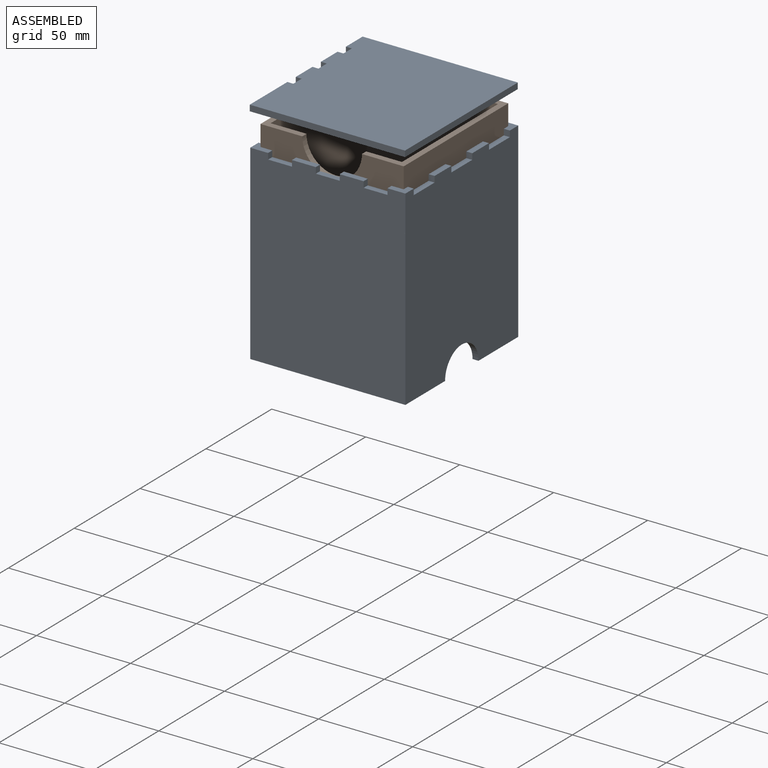
[diagram: assembled view]
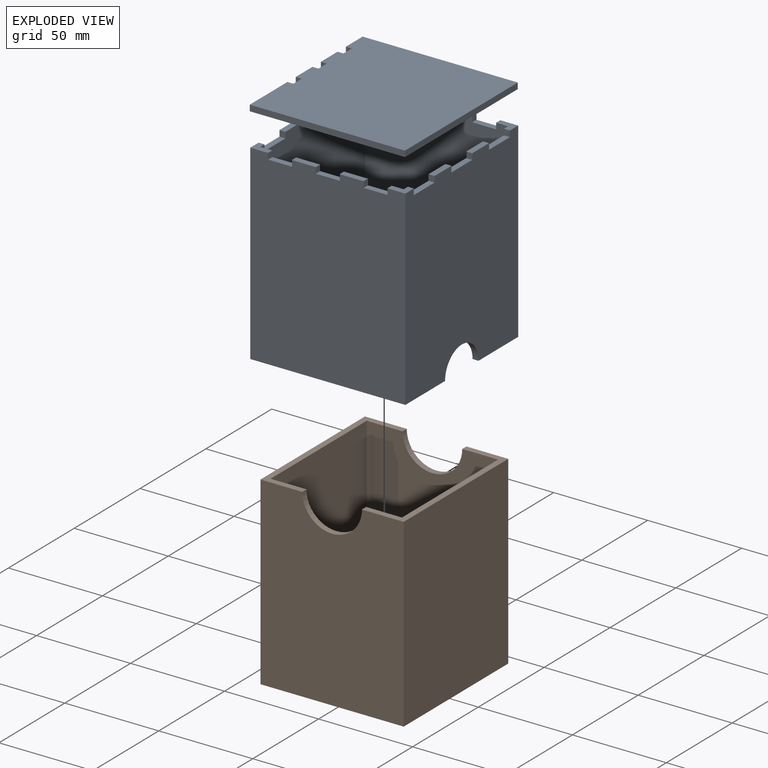
[diagram: exploded view]
GUIDED TOUR — MATED ASSEMBLY WITH SUBASSEMBLIES (Onshape document 00e461404087c15854c8ce74, AutoMate assembly 00e461404087c15854c8ce74_b9351771f8d7acd07a54468d_1669efc70e379d00489d12cd_default)

This assembly has 10 component occurrences arranged in 2 top-level units: 0 individual components plus 2 subassemblies (S0, S1). The tour has two levels: first the top level, where each subassembly is treated as one rigid unit; then each subassembly is toured internally in its own section (nesting deeper than one subassembly level is flattened into its subassembly's section).

Components are labeled P0..P9 across the whole record; subassembly units are labeled S0..S1. A mate is a constraint between two units; its type names the relative motion it leaves free:
  FASTENED — locks the two components together rigidly (no relative motion),
  SLIDER — leaves translation along the listed axis free.
Axis/direction vectors are unit vectors and 'through' points are millimeter coordinates, both in the assembly's world frame.

TOP-LEVEL MATES (between units; each subassembly's internal mates are listed in its own section)
  1. SLIDER "Slider 1": S0 <-> S1, axis (0.000, 0.000, 1.000) through (0.00, 0.00, 104.78) mm

TOP-LEVEL ASSEMBLY ORDER
  1. S0 — the base component [order verified]
  2. S1 [order verified]
Order-tag legend:
  [order verified] — this step's position reverses a verified removal order: the component was checked to insert without passing through the ones already placed.

Of the 10 component occurrences, 9 carry the full construction recipe — the FeatureScript program that regenerates the part's solid from scratch; the rest are supplied as boundary geometry only. Each toured unit is shown spotlighted twice — assembled, then exploded with a leader line back to its socket (green = recipe-attached component, orange = geometry-only, blue = subassembly unit; the rest desaturated gray).
NOTE — document 2 of 2 of this assembly tour. The two overview renders and the header above are repeated from document 1; the component sections below continue where the previous document stopped.
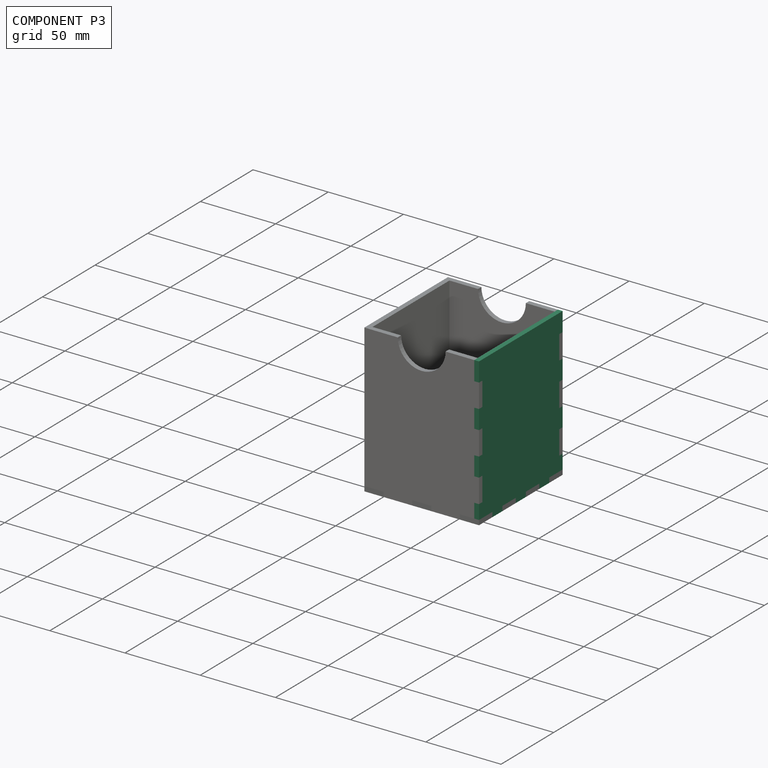
[diagram: component P3 — assembled]
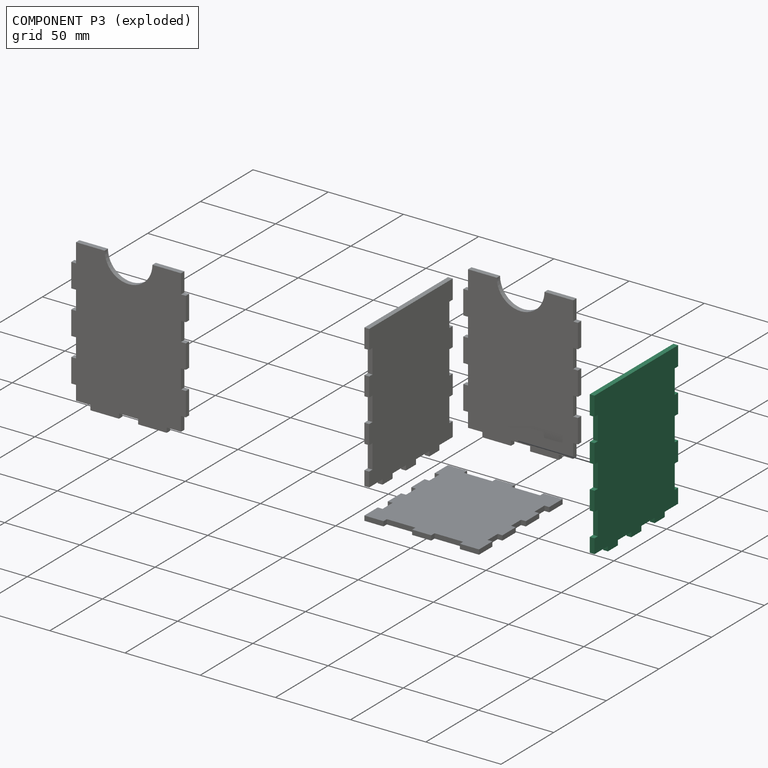
[diagram: component P3 — exploded]
COMPONENT P3 — recipe-attached (CADFS 00515018, mesh-verified: the recipe's output STEP matches this component's geometry to below the mesh-comparison resolution (tessellation chordal tolerance ~0.19 mm)).
Held by: FASTENED mate "Fastened 2" to P8; FASTENED mate "Fastened 3" to P2; FASTENED mate "Fastened 2" to P8; FASTENED mate "Fastened 3" to P2.
Construction recipe (FeatureScript — the CAD program that rebuilds this solid; sketch coordinates are in the units given by the * unit suffixes, e.g. mm):

FeatureScript 1511;
import(path : "onshape/std/geometry.fs", version : "1511.0");
import(path : "onshape/std/common.fs", version : "1511.0");
const mm = millimeter;
const VERTEX = EntityType.VERTEX;
const EDGE = EntityType.EDGE;
const FACE = EntityType.FACE;
const BODY = EntityType.BODY;
function v(x, y){return vector(x, y);}
function OD(order){return orderDisambiguation(order);}
function OSD(set){return originalSetDisambiguation(set);}
function TD(topology){return topologyDisambiguation(topology);}
function TDD(query){return trueDependencyDisambiguation(query);}
function sQuery(a, b, c) {return sketchEntityQuery(a, b, c);}

annotation { "Feature Type Name" : "Feature", "Feature Type Description" : "" }
export const myFeature = defineFeature(function(context is Context, id is Id, definition is map)
    precondition{}
    {
        {
            var Q0;
            Q0=qCreatedBy(makeId("Right.planeOp"),FACE);
            var sketch = newSketch(context, id + "F0", { "sketchPlane" : qUnion([Q0])});
            skLineSegment(sketch, "E0.bottom", {"start": v(-39.69, 49.21) * mm, "end": v(39.69, 49.21) * mm});
            skLineSegment(sketch, "E0.top", {"start": v(-39.69, -49.21) * mm, "end": v(39.69, -49.21) * mm});
            skLineSegment(sketch, "E0.left", {"start": v(-39.69, 49.21) * mm, "end": v(-39.69, -49.21) * mm});
            skLineSegment(sketch, "E0.right", {"start": v(39.69, 49.21) * mm, "end": v(39.69, -49.21) * mm});
            skSolve(sketch);
        }
        {
            var Q0;
            Q0 = qSketchRegion(id + "F0", true);
            extrude(context, id + "F1", {"entities" : qUnion([Q0]), "depth" : 3.17 * mm, "offsetDistance" : 25.4 * mm});
        }
        {
            var Q0;
            Q0=makeQuery(id+"F1.opExtrude","CAP_FACE",FACE,{"disambiguationData":[OSD([sQuery(id+"F0.wireOp",EDGE,"E0.bottom"),sQuery(id+"F0.wireOp",EDGE,"E0.top"),sQuery(id+"F0.wireOp",EDGE,"E0.left"),sQuery(id+"F0.wireOp",EDGE,"E0.right")])],"isStart":false});
            var sketch = newSketch(context, id + "F2", { "sketchPlane" : qUnion([Q0])});
            skLineSegment(sketch, "E1", {"start": v(0, 49.21) * mm, "end": v(0, -49.21) * mm, "construction": true});
            skLineSegment(sketch, "E2.bottom", {"start": v(-39.69, 36.51) * mm, "end": v(-36.51, 36.51) * mm});
            skLineSegment(sketch, "E2.top", {"start": v(-39.69, 20.64) * mm, "end": v(-36.51, 20.64) * mm});
            skLineSegment(sketch, "E2.left", {"start": v(-39.69, 36.51) * mm, "end": v(-39.69, 20.64) * mm});
            skLineSegment(sketch, "E2.right", {"start": v(-36.51, 36.51) * mm, "end": v(-36.51, 20.64) * mm});
            skLineSegment(sketch, "E3.0.1.0", {"start": v(-39.69, -7.94) * mm, "end": v(-36.51, -7.94) * mm});
            skLineSegment(sketch, "E3.0.1.1", {"start": v(-39.69, 7.94) * mm, "end": v(-39.69, -7.94) * mm});
            skLineSegment(sketch, "E3.0.1.2", {"start": v(-39.69, 7.94) * mm, "end": v(-36.51, 7.94) * mm});
            skLineSegment(sketch, "E3.0.1.3", {"start": v(-36.51, 7.94) * mm, "end": v(-36.51, -7.94) * mm});
            skLineSegment(sketch, "E3.0.2.0", {"start": v(-39.69, -36.51) * mm, "end": v(-36.51, -36.51) * mm});
            skLineSegment(sketch, "E3.0.2.1", {"start": v(-39.69, -20.64) * mm, "end": v(-39.69, -36.51) * mm});
            skLineSegment(sketch, "E3.0.2.2", {"start": v(-39.69, -20.64) * mm, "end": v(-36.51, -20.64) * mm});
            skLineSegment(sketch, "E3.0.2.3", {"start": v(-36.51, -20.64) * mm, "end": v(-36.51, -36.51) * mm});
            skLineSegment(sketch, "E3.direction1", {"start": v(-39.69, 20.64) * mm, "end": v(-14.29, 20.64) * mm, "construction": true});
            skLineSegment(sketch, "E3.direction2", {"start": v(-39.69, 20.64) * mm, "end": v(-39.69, -7.94) * mm, "construction": true});
            skLineSegment(sketch, "E4.MirrorCS", {"start": v(39.69, 20.64) * mm, "end": v(36.51, 20.64) * mm});
            skLineSegment(sketch, "E5.MirrorCS", {"start": v(39.69, -36.51) * mm, "end": v(36.51, -36.51) * mm});
            skLineSegment(sketch, "E6.MirrorCS", {"start": v(39.69, -20.64) * mm, "end": v(36.51, -20.64) * mm});
            skLineSegment(sketch, "E7.MirrorCS", {"start": v(39.69, -7.94) * mm, "end": v(36.51, -7.94) * mm});
            skLineSegment(sketch, "E8.MirrorCS", {"start": v(39.69, 36.51) * mm, "end": v(36.51, 36.51) * mm});
            skLineSegment(sketch, "E9.MirrorCS", {"start": v(39.69, 7.94) * mm, "end": v(36.51, 7.94) * mm});
            skLineSegment(sketch, "E10.MirrorCS", {"start": v(39.69, 7.94) * mm, "end": v(39.69, -7.94) * mm});
            skLineSegment(sketch, "E11.MirrorCS", {"start": v(39.69, 36.51) * mm, "end": v(39.69, 20.64) * mm});
            skLineSegment(sketch, "E12.MirrorCS", {"start": v(36.51, -20.64) * mm, "end": v(36.51, -36.51) * mm});
            skLineSegment(sketch, "E13.MirrorCS", {"start": v(39.69, 20.64) * mm, "end": v(39.69, -7.94) * mm, "construction": true});
            skLineSegment(sketch, "E14.MirrorCS", {"start": v(39.69, 20.64) * mm, "end": v(14.29, 20.64) * mm, "construction": true});
            skLineSegment(sketch, "E15.MirrorCS", {"start": v(36.51, 36.51) * mm, "end": v(36.51, 20.64) * mm});
            skLineSegment(sketch, "E16.MirrorCS", {"start": v(39.69, -20.64) * mm, "end": v(39.69, -36.51) * mm});
            skLineSegment(sketch, "E17.MirrorCS", {"start": v(36.51, 7.94) * mm, "end": v(36.51, -7.94) * mm});
            skSolve(sketch);
        }
        {
            var Q0;
            Q0 = qSketchRegion(id + "F2", true);
            extrude(context, id + "F3", {"entities" : qUnion([Q0]), "operationType" : NewBodyOperationType.REMOVE, "endBound" : BoundingType.THROUGH_ALL, "oppositeDirection" : true, "depth" : 25.4 * mm, "offsetDistance" : 25.4 * mm});
        }
        {
            var Q0;
            Q0=makeQuery(id+"F1.opExtrude","CAP_FACE",FACE,{"disambiguationData":[OSD([sQuery(id+"F0.wireOp",EDGE,"E0.bottom"),sQuery(id+"F0.wireOp",EDGE,"E0.top"),sQuery(id+"F0.wireOp",EDGE,"E0.left"),sQuery(id+"F0.wireOp",EDGE,"E0.right")])],"isStart":false});
            var sketch = newSketch(context, id + "F4", { "sketchPlane" : qUnion([Q0])});
            skLineSegment(sketch, "E18.bottom", {"start": v(-39.69, 49.21) * mm, "end": v(-26.99, 49.21) * mm});
            skLineSegment(sketch, "E18.top", {"start": v(-39.69, 46.04) * mm, "end": v(-26.99, 46.04) * mm});
            skLineSegment(sketch, "E18.left", {"start": v(-39.69, 49.21) * mm, "end": v(-39.69, 46.04) * mm});
            skLineSegment(sketch, "E18.right", {"start": v(-26.99, 49.21) * mm, "end": v(-26.99, 46.04) * mm});
            skLineSegment(sketch, "E19.1.0.0", {"start": v(-4.76, 49.21) * mm, "end": v(-4.76, 46.04) * mm});
            skLineSegment(sketch, "E19.1.0.1", {"start": v(-17.46, 49.21) * mm, "end": v(-17.46, 46.04) * mm});
            skLineSegment(sketch, "E19.1.0.2", {"start": v(-17.46, 46.04) * mm, "end": v(-4.76, 46.04) * mm});
            skLineSegment(sketch, "E19.1.0.3", {"start": v(-17.46, 49.21) * mm, "end": v(-4.76, 49.21) * mm});
            skLineSegment(sketch, "E19.2.0.0", {"start": v(17.46, 49.21) * mm, "end": v(17.46, 46.04) * mm});
            skLineSegment(sketch, "E19.2.0.1", {"start": v(4.76, 49.21) * mm, "end": v(4.76, 46.04) * mm});
            skLineSegment(sketch, "E19.2.0.2", {"start": v(4.76, 46.04) * mm, "end": v(17.46, 46.04) * mm});
            skLineSegment(sketch, "E19.2.0.3", {"start": v(4.76, 49.21) * mm, "end": v(17.46, 49.21) * mm});
            skLineSegment(sketch, "E19.3.0.0", {"start": v(39.69, 49.21) * mm, "end": v(39.69, 46.04) * mm});
            skLineSegment(sketch, "E19.3.0.1", {"start": v(26.99, 49.21) * mm, "end": v(26.99, 46.04) * mm});
            skLineSegment(sketch, "E19.3.0.2", {"start": v(26.99, 46.04) * mm, "end": v(39.69, 46.04) * mm});
            skLineSegment(sketch, "E19.3.0.3", {"start": v(26.99, 49.21) * mm, "end": v(39.69, 49.21) * mm});
            skLineSegment(sketch, "E19.direction1", {"start": v(-39.69, 46.04) * mm, "end": v(-17.46, 46.04) * mm, "construction": true});
            skSolve(sketch);
        }
        {
            var Q0;
            Q0 = qSketchRegion(id + "F4", true);
            extrude(context, id + "F5", {"entities" : qUnion([Q0]), "operationType" : NewBodyOperationType.REMOVE, "endBound" : BoundingType.THROUGH_ALL, "oppositeDirection" : true, "depth" : 25.4 * mm, "offsetDistance" : 25.4 * mm});
        }
    });
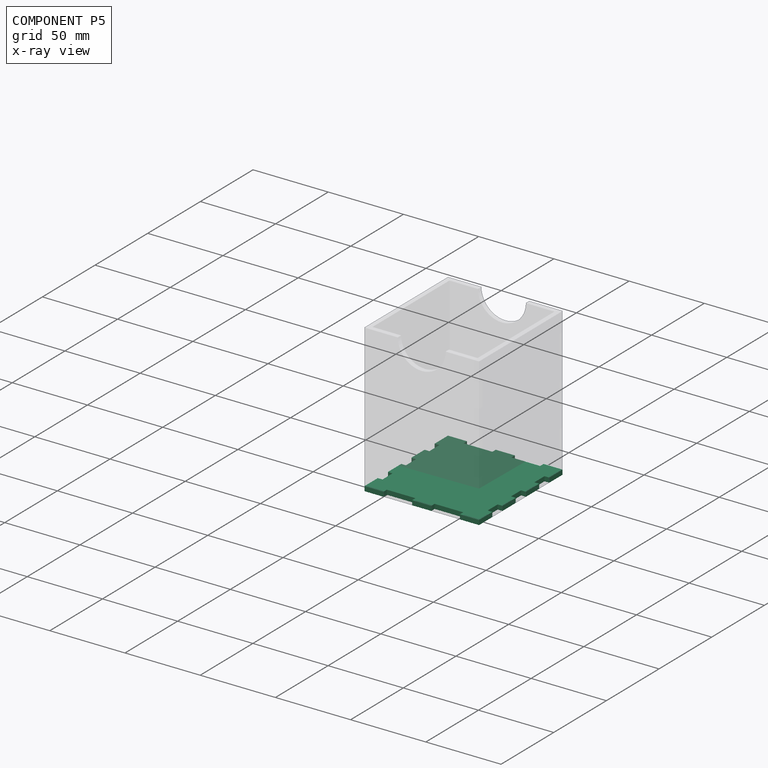
[diagram: component P5 — x-ray view]
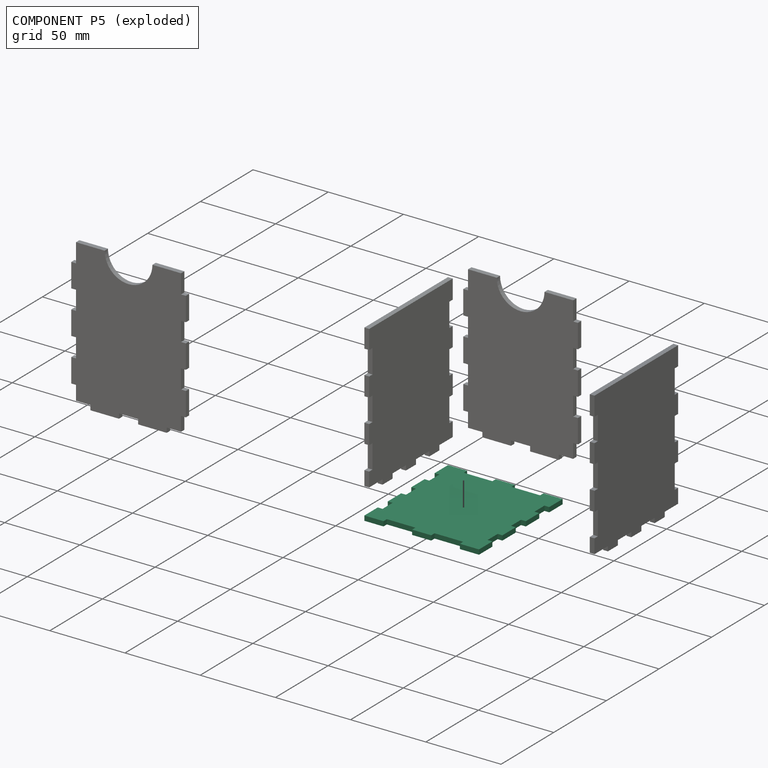
[diagram: component P5 — exploded]
COMPONENT P5 — recipe-attached (CADFS 00515020, mesh-verified: the recipe's output STEP matches this component's geometry to below the mesh-comparison resolution (tessellation chordal tolerance ~0.165 mm)).
Held by: FASTENED mate "Fastened 4" to P8; FASTENED mate "Fastened 4" to P8.
Construction recipe (FeatureScript — the CAD program that rebuilds this solid; sketch coordinates are in the units given by the * unit suffixes, e.g. mm):

FeatureScript 1511;
import(path : "onshape/std/geometry.fs", version : "1511.0");
import(path : "onshape/std/common.fs", version : "1511.0");
const mm = millimeter;
const VERTEX = EntityType.VERTEX;
const EDGE = EntityType.EDGE;
const FACE = EntityType.FACE;
const BODY = EntityType.BODY;
function v(x, y){return vector(x, y);}
function OD(order){return orderDisambiguation(order);}
function OSD(set){return originalSetDisambiguation(set);}
function TD(topology){return topologyDisambiguation(topology);}
function TDD(query){return trueDependencyDisambiguation(query);}
function sQuery(a, b, c) {return sketchEntityQuery(a, b, c);}

annotation { "Feature Type Name" : "Feature", "Feature Type Description" : "" }
export const myFeature = defineFeature(function(context is Context, id is Id, definition is map)
    precondition{}
    {
        {
            var Q0;
            Q0=qCreatedBy(makeId("Top.planeOp"),FACE);
            var sketch = newSketch(context, id + "F0", { "sketchPlane" : qUnion([Q0])});
            skLineSegment(sketch, "E0.bottom", {"start": v(-38.1, 39.69) * mm, "end": v(38.1, 39.69) * mm});
            skLineSegment(sketch, "E0.top", {"start": v(-38.1, -39.69) * mm, "end": v(38.1, -39.69) * mm});
            skLineSegment(sketch, "E0.left", {"start": v(-38.1, 39.69) * mm, "end": v(-38.1, -39.69) * mm});
            skLineSegment(sketch, "E0.right", {"start": v(38.1, 39.69) * mm, "end": v(38.1, -39.69) * mm});
            skSolve(sketch);
        }
        {
            var Q0;
            Q0 = qSketchRegion(id + "F0", true);
            extrude(context, id + "F1", {"entities" : qUnion([Q0]), "depth" : 3.17 * mm, "offsetDistance" : 25.4 * mm});
        }
        {
            var Q0;
            Q0=makeQuery(id+"F1.opExtrude","CAP_FACE",FACE,{"disambiguationData":[OSD([sQuery(id+"F0.wireOp",EDGE,"E0.bottom"),sQuery(id+"F0.wireOp",EDGE,"E0.top"),sQuery(id+"F0.wireOp",EDGE,"E0.left"),sQuery(id+"F0.wireOp",EDGE,"E0.right")])],"isStart":false});
            var sketch = newSketch(context, id + "F2", { "sketchPlane" : qUnion([Q0])});
            skLineSegment(sketch, "E1", {"start": v(-38.1, 0) * mm, "end": v(38.1, 0) * mm, "construction": true});
            skLineSegment(sketch, "E2.bottom", {"start": v(-25.4, 39.69) * mm, "end": v(-6.35, 39.69) * mm});
            skLineSegment(sketch, "E2.top", {"start": v(-25.4, 36.51) * mm, "end": v(-6.35, 36.51) * mm});
            skLineSegment(sketch, "E2.left", {"start": v(-25.4, 39.69) * mm, "end": v(-25.4, 36.51) * mm});
            skLineSegment(sketch, "E2.right", {"start": v(-6.35, 39.69) * mm, "end": v(-6.35, 36.51) * mm});
            skLineSegment(sketch, "E3.1.0.0", {"start": v(6.35, 36.51) * mm, "end": v(25.4, 36.51) * mm});
            skLineSegment(sketch, "E3.1.0.1", {"start": v(6.35, 39.69) * mm, "end": v(25.4, 39.69) * mm});
            skLineSegment(sketch, "E3.1.0.2", {"start": v(25.4, 39.69) * mm, "end": v(25.4, 36.51) * mm});
            skLineSegment(sketch, "E3.1.0.3", {"start": v(6.35, 39.69) * mm, "end": v(6.35, 36.51) * mm});
            skLineSegment(sketch, "E3.direction1", {"start": v(-25.4, 36.51) * mm, "end": v(6.35, 36.51) * mm, "construction": true});
            skLineSegment(sketch, "E4.MirrorCS", {"start": v(25.4, -39.69) * mm, "end": v(25.4, -36.51) * mm});
            skLineSegment(sketch, "E5.MirrorCS", {"start": v(6.35, -39.69) * mm, "end": v(6.35, -36.51) * mm});
            skLineSegment(sketch, "E6.MirrorCS", {"start": v(-25.4, -39.69) * mm, "end": v(-25.4, -36.51) * mm});
            skLineSegment(sketch, "E7.MirrorCS", {"start": v(-6.35, -39.69) * mm, "end": v(-6.35, -36.51) * mm});
            skLineSegment(sketch, "E8.MirrorCS", {"start": v(-25.4, -36.51) * mm, "end": v(-6.35, -36.51) * mm});
            skLineSegment(sketch, "E9.MirrorCS", {"start": v(-25.4, -39.69) * mm, "end": v(-6.35, -39.69) * mm});
            skLineSegment(sketch, "E10.MirrorCS", {"start": v(6.35, -39.69) * mm, "end": v(25.4, -39.69) * mm});
            skLineSegment(sketch, "E11.MirrorCS", {"start": v(-25.4, -36.51) * mm, "end": v(6.35, -36.51) * mm, "construction": true});
            skLineSegment(sketch, "E12.MirrorCS", {"start": v(6.35, -36.51) * mm, "end": v(25.4, -36.51) * mm});
            skSolve(sketch);
        }
        {
            var Q0;
            Q0 = qSketchRegion(id + "F2", true);
            extrude(context, id + "F3", {"entities" : qUnion([Q0]), "operationType" : NewBodyOperationType.REMOVE, "endBound" : BoundingType.THROUGH_ALL, "oppositeDirection" : true, "depth" : 25.4 * mm, "offsetDistance" : 25.4 * mm});
        }
        {
            var Q0;
            Q0=makeQuery(id+"F1.opExtrude","CAP_FACE",FACE,{"disambiguationData":[OSD([sQuery(id+"F0.wireOp",EDGE,"E0.bottom"),sQuery(id+"F0.wireOp",EDGE,"E0.top"),sQuery(id+"F0.wireOp",EDGE,"E0.left"),sQuery(id+"F0.wireOp",EDGE,"E0.right")])],"isStart":false});
            var sketch = newSketch(context, id + "F4", { "sketchPlane" : qUnion([Q0])});
            skLineSegment(sketch, "E13.bottom", {"start": v(-38.1, 26.99) * mm, "end": v(-34.93, 26.99) * mm});
            skLineSegment(sketch, "E13.top", {"start": v(-38.1, 17.46) * mm, "end": v(-34.93, 17.46) * mm});
            skLineSegment(sketch, "E13.left", {"start": v(-38.1, 26.99) * mm, "end": v(-38.1, 17.46) * mm});
            skLineSegment(sketch, "E13.right", {"start": v(-34.93, 26.99) * mm, "end": v(-34.93, 17.46) * mm});
            skLineSegment(sketch, "E14.0.1.0", {"start": v(-34.93, 4.76) * mm, "end": v(-34.93, -4.76) * mm});
            skLineSegment(sketch, "E14.0.1.1", {"start": v(-38.1, 4.76) * mm, "end": v(-38.1, -4.76) * mm});
            skLineSegment(sketch, "E14.0.1.2", {"start": v(-38.1, 4.76) * mm, "end": v(-34.93, 4.76) * mm});
            skLineSegment(sketch, "E14.0.1.3", {"start": v(-38.1, -4.76) * mm, "end": v(-34.93, -4.76) * mm});
            skLineSegment(sketch, "E14.0.2.0", {"start": v(-34.93, -17.46) * mm, "end": v(-34.93, -26.99) * mm});
            skLineSegment(sketch, "E14.0.2.1", {"start": v(-38.1, -17.46) * mm, "end": v(-38.1, -26.99) * mm});
            skLineSegment(sketch, "E14.0.2.2", {"start": v(-38.1, -17.46) * mm, "end": v(-34.93, -17.46) * mm});
            skLineSegment(sketch, "E14.0.2.3", {"start": v(-38.1, -26.99) * mm, "end": v(-34.93, -26.99) * mm});
            skLineSegment(sketch, "E14.direction1", {"start": v(-38.1, 17.46) * mm, "end": v(-12.7, 17.46) * mm, "construction": true});
            skLineSegment(sketch, "E14.direction2", {"start": v(-38.1, 17.46) * mm, "end": v(-38.1, -4.76) * mm, "construction": true});
            skLineSegment(sketch, "E15", {"start": v(0, 39.69) * mm, "end": v(0, -39.69) * mm, "construction": true});
            skLineSegment(sketch, "E16.MirrorCS", {"start": v(38.1, -26.99) * mm, "end": v(34.92, -26.99) * mm});
            skLineSegment(sketch, "E17.MirrorCS", {"start": v(38.1, -4.76) * mm, "end": v(34.93, -4.76) * mm});
            skLineSegment(sketch, "E18.MirrorCS", {"start": v(38.1, 4.76) * mm, "end": v(34.93, 4.76) * mm});
            skLineSegment(sketch, "E19.MirrorCS", {"start": v(38.1, -17.46) * mm, "end": v(34.92, -17.46) * mm});
            skLineSegment(sketch, "E20.MirrorCS", {"start": v(38.1, 26.99) * mm, "end": v(34.93, 26.99) * mm});
            skLineSegment(sketch, "E21.MirrorCS", {"start": v(38.1, 17.46) * mm, "end": v(34.93, 17.46) * mm});
            skLineSegment(sketch, "E22.MirrorCS", {"start": v(38.1, 4.76) * mm, "end": v(38.1, -4.76) * mm});
            skLineSegment(sketch, "E23.MirrorCS", {"start": v(38.1, 17.46) * mm, "end": v(38.1, -4.76) * mm, "construction": true});
            skLineSegment(sketch, "E24.MirrorCS", {"start": v(38.1, 17.46) * mm, "end": v(12.7, 17.46) * mm, "construction": true});
            skLineSegment(sketch, "E25.MirrorCS", {"start": v(34.93, 26.99) * mm, "end": v(34.93, 17.46) * mm});
            skLineSegment(sketch, "E26.MirrorCS", {"start": v(34.93, -17.46) * mm, "end": v(34.93, -26.99) * mm});
            skLineSegment(sketch, "E27.MirrorCS", {"start": v(38.1, 26.99) * mm, "end": v(38.1, 17.46) * mm});
            skLineSegment(sketch, "E28.MirrorCS", {"start": v(34.93, 4.76) * mm, "end": v(34.93, -4.76) * mm});
            skLineSegment(sketch, "E29.MirrorCS", {"start": v(38.1, -17.46) * mm, "end": v(38.1, -26.99) * mm});
            skSolve(sketch);
        }
        {
            var Q0;
            Q0 = qSketchRegion(id + "F4", true);
            extrude(context, id + "F5", {"entities" : qUnion([Q0]), "operationType" : NewBodyOperationType.REMOVE, "endBound" : BoundingType.THROUGH_ALL, "oppositeDirection" : true, "depth" : 25.4 * mm, "offsetDistance" : 25.4 * mm});
        }
    });
PROVENANCE & LICENSES
Assembly (occurrences, transforms, mates, per-part STEP geometry): AutoMate dataset, Zenodo record 7776208, CC0.
Construction recipes: CADFS (HuggingFace VladPyatov/CADFS, CC-BY-4.0, layered over the ABC dataset), FeatureScript reconstruction programs keyed by ABC model id.
Join: ABC meta listings map ABC model id -> Onshape documentId; within a shared document, parts are matched by geometric signature (bounding-box dims + volume at 0.1% relative tolerance, exact B-rep face/solid counts).
Verification: 9 of this assembly's 10 components carry a recipe attachment, and every attachment is mesh-verified: the CADFS STEP and the AutoMate member STEP were compared as meshes in their shared local frame (symmetric sampled-point-to-mesh distance); worst across the 9 attachments: below the mesh-comparison resolution (tessellation chordal tolerance ~0.199 mm) on a 133 mm part.
Renders: orthographic iso camera (az 35 / el 25); the floor grid conveys scale (grid pitch printed in each image; no ruler). In the exploded view each component is displaced by its stored offset vector: the offsets alone carry the explosion direction (mate normal/axis signs are not orientation cues and do not encode it), and separation distances are assigned per mate-chain, not proportionally to assembly-order depth.
